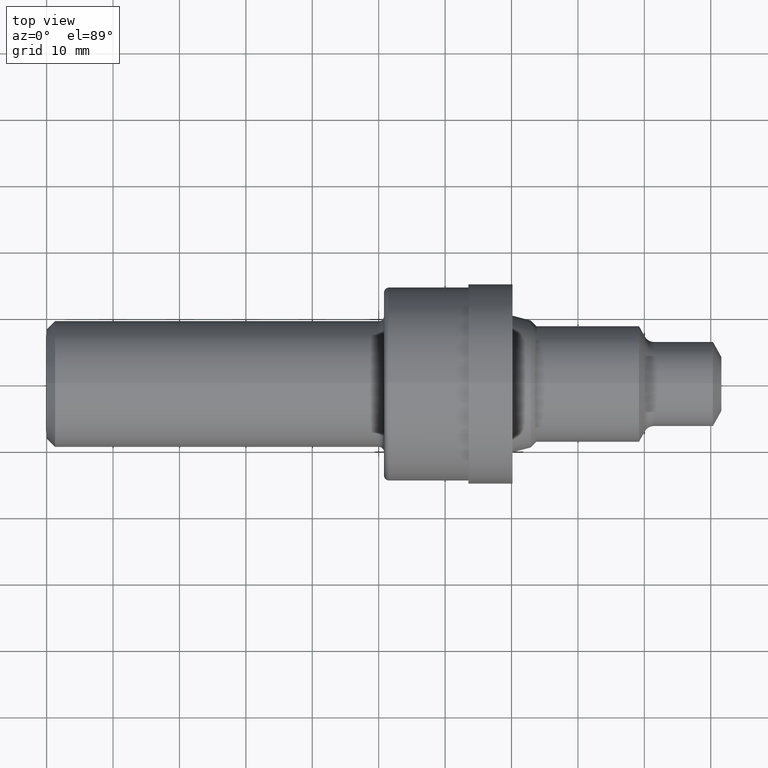
[diagram: clean part render]
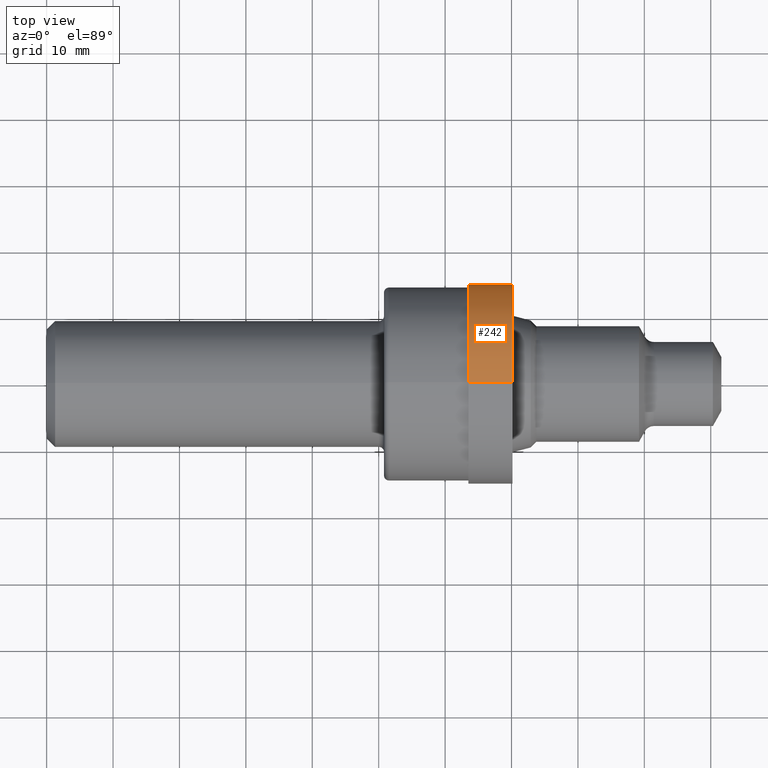
[diagram: same view with one face highlighted and labeled with its STEP entity id]
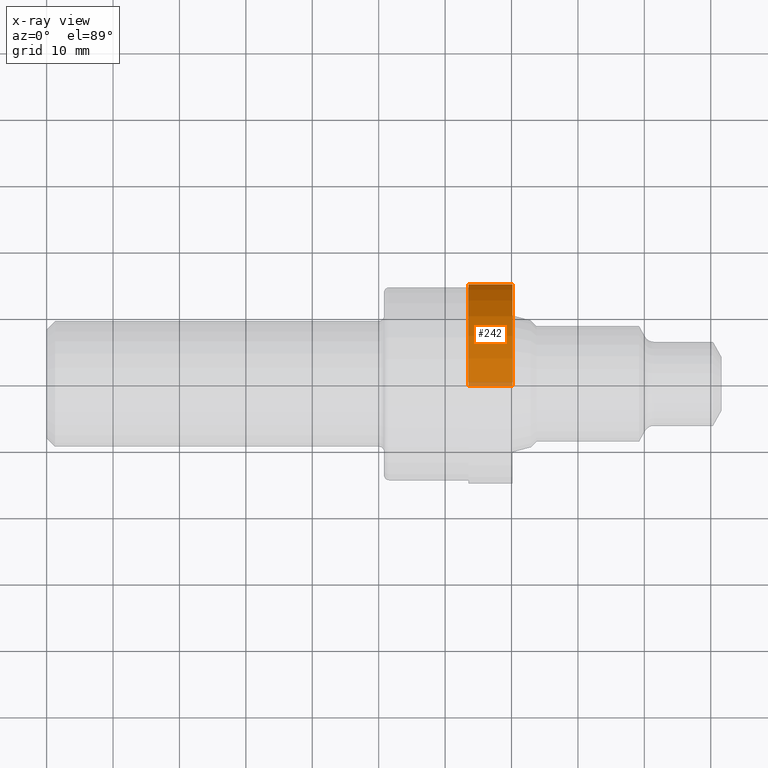
[diagram: x-ray of the same camera — body ghosted, the highlighted face saturated]
A machine part, top view. The second image highlights one B-rep face of the part: STEP entity #242.
The next image is the same camera in x-ray: the body ghosted, the highlighted face saturated — about 3% of this face is hidden behind the body in this view.
In plain terms, the highlighted cylindrical surface (partial cylindrical patch) has radius 15.0876 mm, axis along (-1, -0, -0).
Its self-contained STEP definition (entity closure, byte-faithful):
#3 = AXIS2_PLACEMENT_3D ( 'NONE', #599, #469, #66 ) ;
#28 = DIRECTION ( 'NONE',  ( 0.0000000000000000000, 0.0000000000000000000, 1.000000000000000000 ) ) ;
#65 = VERTEX_POINT ( 'NONE', #70 ) ;
#66 = DIRECTION ( 'NONE',  ( 0.0000000000000000000, 0.0000000000000000000, 1.000000000000000000 ) ) ;
#70 = CARTESIAN_POINT ( 'NONE',  ( 2.500000000000000000, 0.0000000000000000000, 0.5939999999999999725 ) ) ;
#89 = DIRECTION ( 'NONE',  ( 0.0000000000000000000, 0.0000000000000000000, 1.000000000000000000 ) ) ;
#95 = CARTESIAN_POINT ( 'NONE',  ( 0.0000000000000000000, 7.274401986935277967E-17, -0.5939999999999999725 ) ) ;
#110 = ORIENTED_EDGE ( 'NONE', *, *, #579, .T. ) ;
#137 = CARTESIAN_POINT ( 'NONE',  ( 2.762000000000000011, 0.0000000000000000000, 0.5939999999999999725 ) ) ;
#142 = LINE ( 'NONE', #705, #645 ) ;
#194 = EDGE_CURVE ( 'NONE', #319, #65, #142, .T. ) ;
#214 = AXIS2_PLACEMENT_3D ( 'NONE', #612, #221, #89 ) ;
#221 = DIRECTION ( 'NONE',  ( -1.000000000000000000, -0.0000000000000000000, -0.0000000000000000000 ) ) ;
#242 = ADVANCED_FACE ( 'NONE', ( #627 ), #436, .T. ) ;
#310 = VERTEX_POINT ( 'NONE', #666 ) ;
#316 = AXIS2_PLACEMENT_3D ( 'NONE', #795, #424, #28 ) ;
#317 = EDGE_CURVE ( 'NONE', #65, #310, #710, .T. ) ;
#319 = VERTEX_POINT ( 'NONE', #137 ) ;
#387 = ORIENTED_EDGE ( 'NONE', *, *, #317, .F. ) ;
#424 = DIRECTION ( 'NONE',  ( -1.000000000000000000, -0.0000000000000000000, -0.0000000000000000000 ) ) ;
#436 = CYLINDRICAL_SURFACE ( 'NONE', #214, 0.5939999999999999725 ) ;
#469 = DIRECTION ( 'NONE',  ( -1.000000000000000000, -0.0000000000000000000, -0.0000000000000000000 ) ) ;
#472 = VECTOR ( 'NONE', #732, 39.37007874015748143 ) ;
#496 = CIRCLE ( 'NONE', #316, 0.5939999999999999725 ) ;
#518 = DIRECTION ( 'NONE',  ( -1.000000000000000000, -0.0000000000000000000, -0.0000000000000000000 ) ) ;
#553 = VERTEX_POINT ( 'NONE', #624 ) ;
#579 = EDGE_CURVE ( 'NONE', #319, #553, #496, .T. ) ;
#599 = CARTESIAN_POINT ( 'NONE',  ( 2.500000000000000000, 0.0000000000000000000, 0.0000000000000000000 ) ) ;
#612 = CARTESIAN_POINT ( 'NONE',  ( 0.0000000000000000000, 0.0000000000000000000, 0.0000000000000000000 ) ) ;
#619 = EDGE_CURVE ( 'NONE', #553, #310, #826, .T. ) ;
#624 = CARTESIAN_POINT ( 'NONE',  ( 2.762000000000000011, 7.274401986935277967E-17, -0.5939999999999999725 ) ) ;
#627 = FACE_OUTER_BOUND ( 'NONE', #830, .T. ) ;
#645 = VECTOR ( 'NONE', #518, 39.37007874015748143 ) ;
#666 = CARTESIAN_POINT ( 'NONE',  ( 2.500000000000000000, 7.274401986935277967E-17, -0.5939999999999999725 ) ) ;
#705 = CARTESIAN_POINT ( 'NONE',  ( 0.0000000000000000000, 0.0000000000000000000, 0.5939999999999999725 ) ) ;
#710 = CIRCLE ( 'NONE', #3, 0.5939999999999999725 ) ;
#732 = DIRECTION ( 'NONE',  ( -1.000000000000000000, -0.0000000000000000000, -0.0000000000000000000 ) ) ;
#772 = ORIENTED_EDGE ( 'NONE', *, *, #194, .F. ) ;
#795 = CARTESIAN_POINT ( 'NONE',  ( 2.762000000000000011, 0.0000000000000000000, 0.0000000000000000000 ) ) ;
#812 = ORIENTED_EDGE ( 'NONE', *, *, #619, .T. ) ;
#826 = LINE ( 'NONE', #95, #472 ) ;
#830 = EDGE_LOOP ( 'NONE', ( #110, #812, #387, #772 ) ) ;